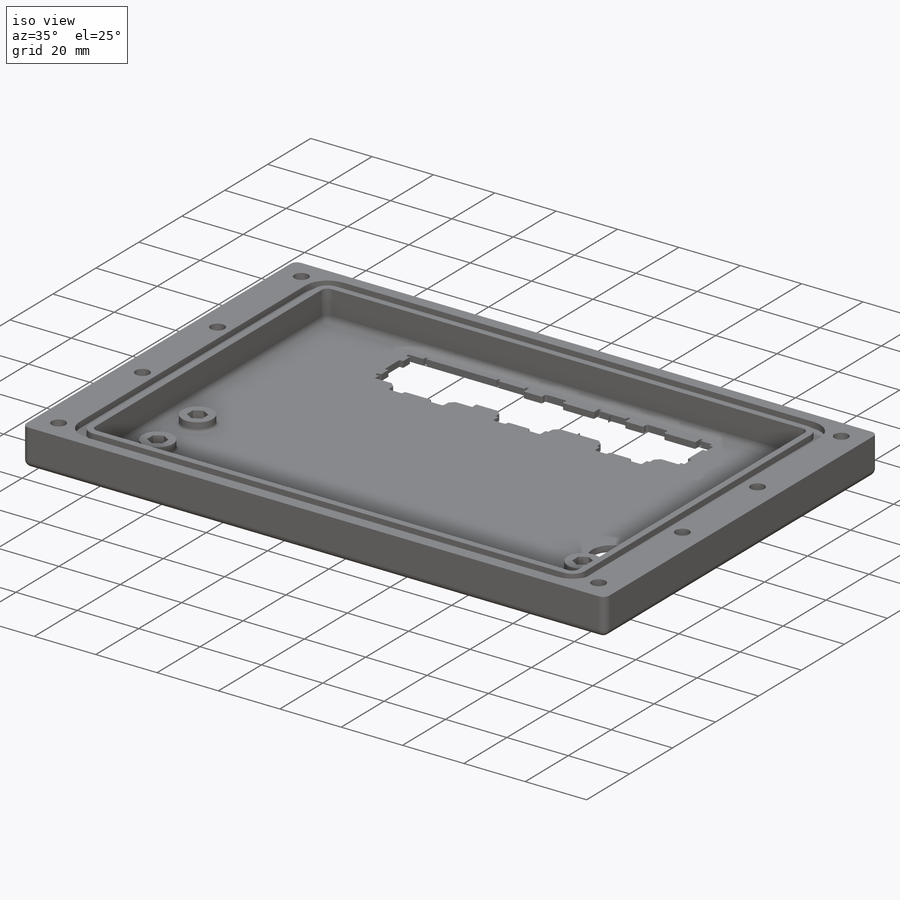
[diagram: iso view]
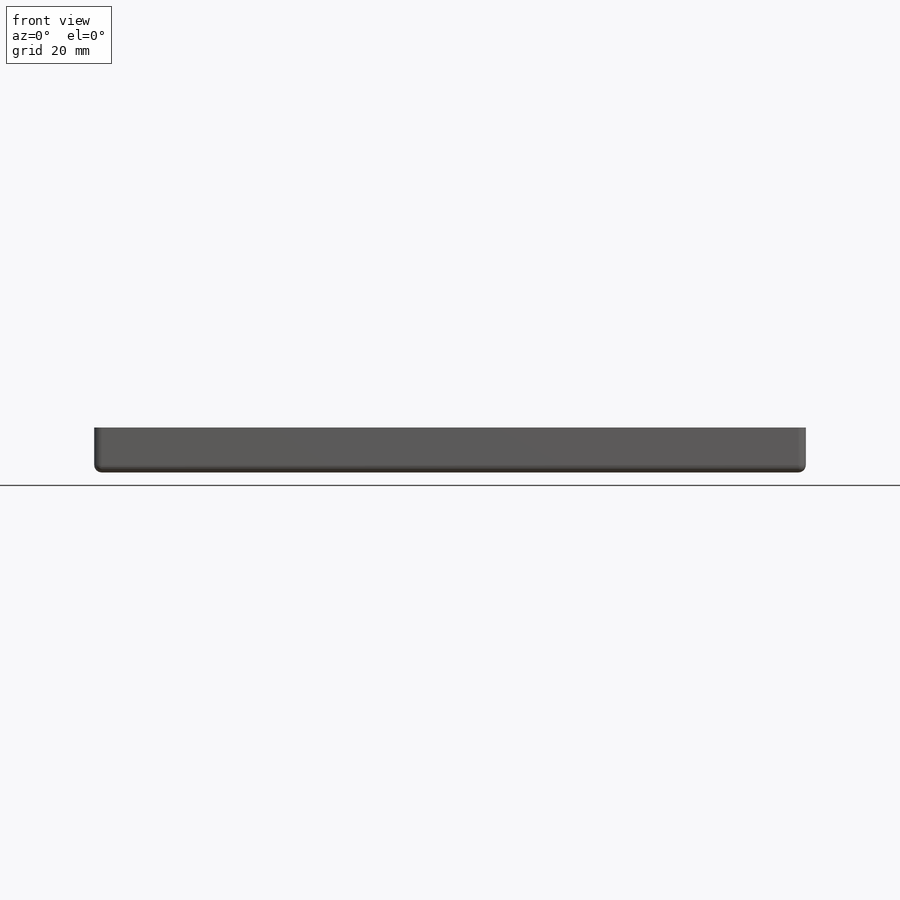
[diagram: front view]
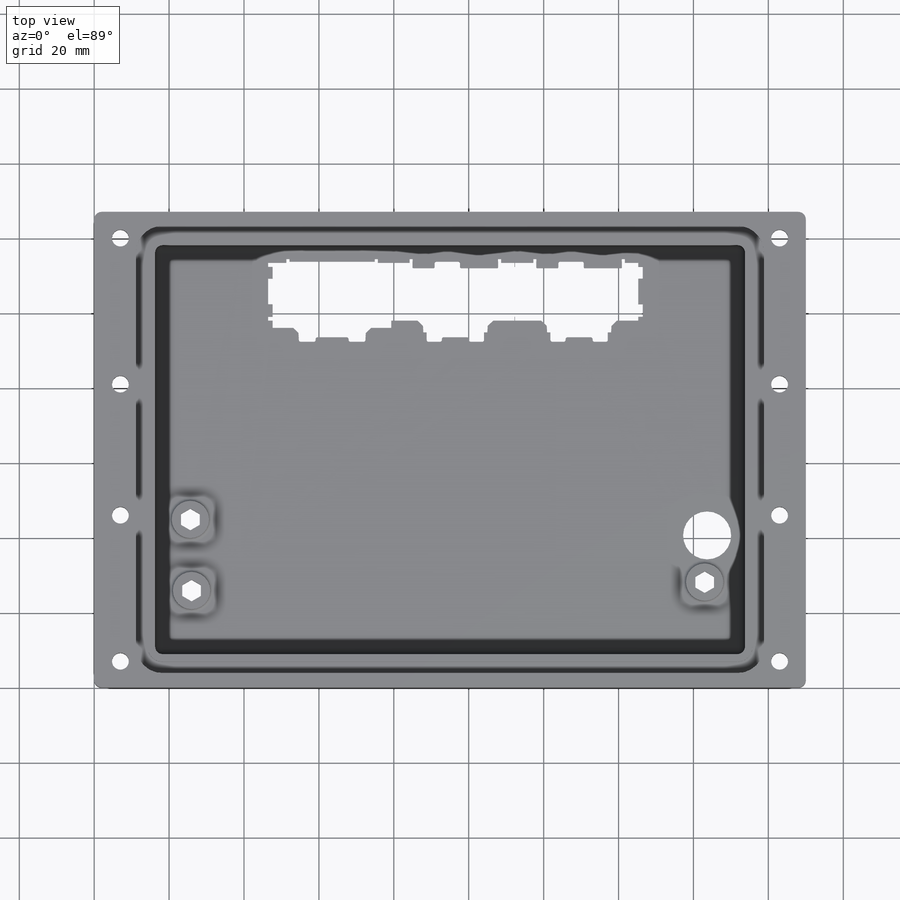
[diagram: top view]
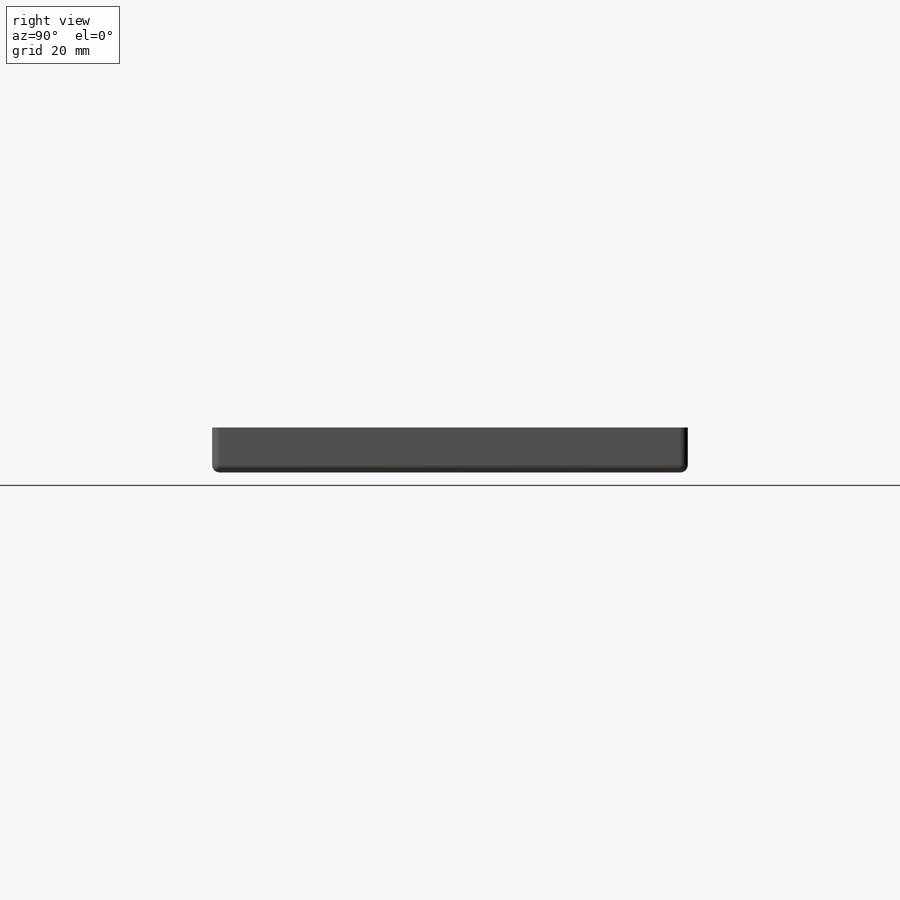
[diagram: right view]
SOLIDWORKS PART (.sldprt)
format: sldprt  version: not decoded by parser v0  size: 3,144,192 bytes
history: native  units: mm
features: sketch x8, cut_extrude x4, fillet x3, extrude x2, material x1, hole x1 (+11 scaffold rows collapsed)
feature tree (30):
  scaffold x11  (default folders/planes/origin — collapsed)
  material  "Material <not specified>"
  sketch  "Sketch1"  dims[D1=127.0mm D2=190.0mm]
  extrude  "Boss-Extrude1"  Depth=12mm
  fillet  "Fillet1"  Radius=2mm
  sketch  "Sketch2"  dims[D1=109.22mm D2=157.48mm]
  cut_extrude  "Cut-Extrude1"  Depth=2mm
  fillet  "Fillet2"  Radius=2mm
  sketch  "Sketch3"  dims[D1=2.032mm D2=3.0734mm]
  cut_extrude  "Cut-Extrude2"  Depth=1.9812mm
  sketch  "Sketch4"  dims[D1=5.0mm]
  cut_extrude  "Cut-Extrude3"  [1 undecoded]
  sketch  "Sketch5"  dims[D1=10.0mm]
  extrude  "Boss-Extrude3"  Depth=3mm
  fillet  "Fillet3"  Radius=1mm
  hole  "CBORE for M4 SHCS1"  Diameter=4.5mm Depth=12mm
  sketch  "Sketch7"  dims[D1=7.0mm D2=7.0mm D3=7.0mm D4=7.0mm D5=7.0mm D6=7.0mm D7=7.0mm D8=7.0mm D9=35.0mm D10=35.0mm]
  sketch  "Sketch6"  dims[hole-wizard template sketch: 42 standard entries collapsed; hole parameters kept: c12.Thru Hole Depth=12.0mm c12.C'Bore Dia.=8.0mm c12.C'Bore Depth=4.0mm]
  sketch  "Sketch8"  dims[D1=12.827mm]
  cut_extrude  "Cut-Extrude4"  [1 undecoded]
decode coverage: 16 of 18 modeling features carry decoded parameters
note: ~ marks probable driven/reference dimensions
note: 2 parameter values undecoded
note: suppression state not decoded; provenance and decode notes live in map.json
